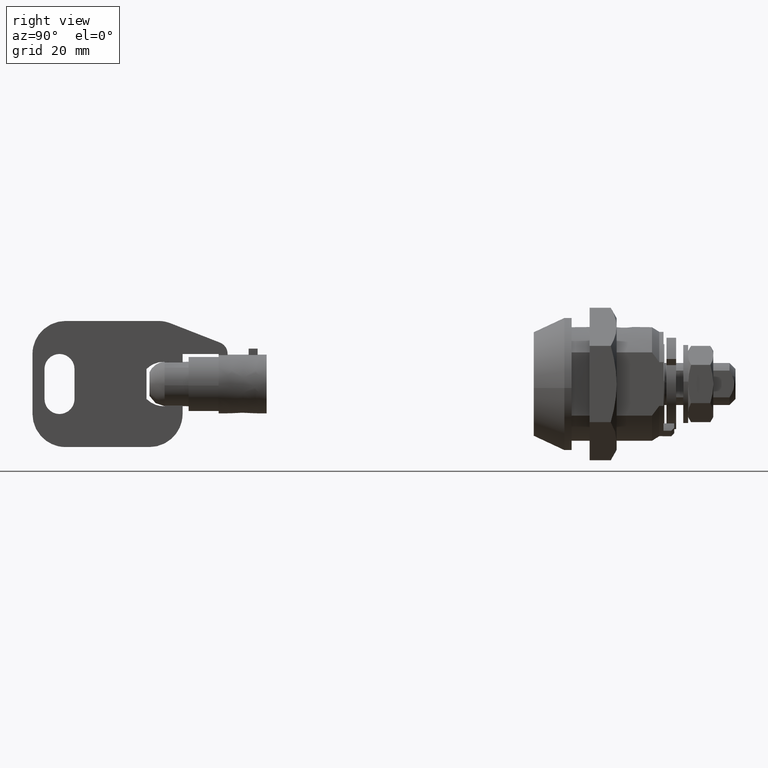
[diagram: clean part render]
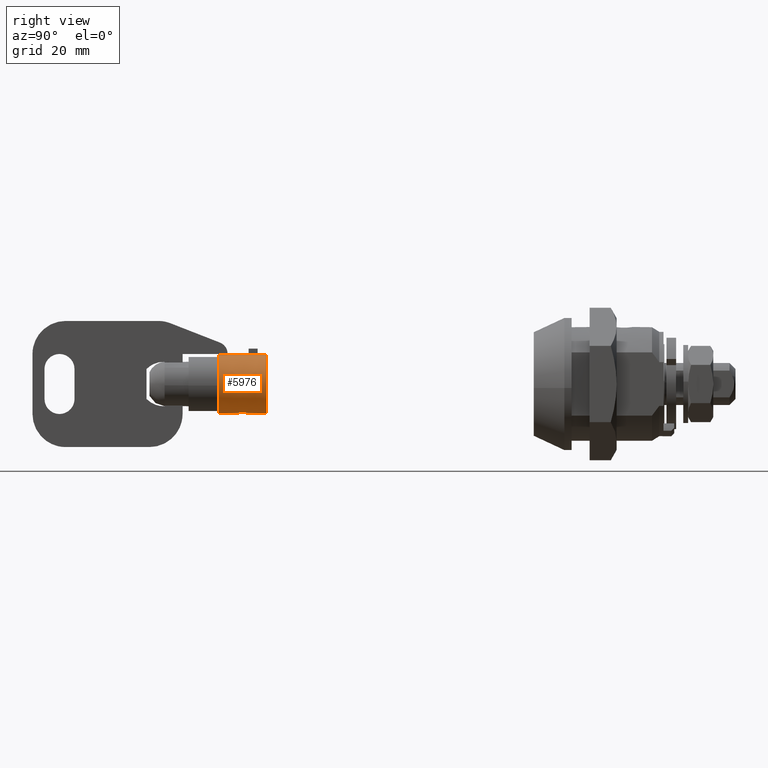
[diagram: same view with one face highlighted and labeled with its STEP entity id]
A machine part, right view. The second image highlights one B-rep face of the part: STEP entity #5976.
In plain terms, the highlighted face is a freeform B-spline surface patch.
Its self-contained STEP definition (entity closure, byte-faithful):
#5772=CARTESIAN_POINT('',(-44.290192999999945,3.141464478331277,-3.763065005296247));
#5773=CARTESIAN_POINT('',(-44.290192999999945,3.086635226226902,-3.806250179672497));
#5774=CARTESIAN_POINT('',(-44.290192999999938,1.657061809872898,-4.932225364440196));
#5775=CARTESIAN_POINT('',(-44.290192999999952,-0.092682498993678,-4.899123386319258));
#5776=CARTESIAN_POINT('',(-44.290192999999938,-4.991805885312937,-4.806440887325580));
#5777=CARTESIAN_POINT('',(-44.290192999999952,-4.899123386319258,0.092682498993678));
#5778=CARTESIAN_POINT('',(-44.290192999999938,-4.806440887325580,4.991805885312937));
#5779=CARTESIAN_POINT('',(-44.290192999999952,0.092682498993678,4.899123386319258));
#5780=CARTESIAN_POINT('',(-44.290192999999938,4.991805885312937,4.806440887325580));
#5781=CARTESIAN_POINT('',(-44.290192999999960,4.898001697958048,-0.151974056107977));
#5782=CARTESIAN_POINT('',(-44.290192999999924,4.896891199577016,-0.210674119744937));
#5783=CARTESIAN_POINT('',(-52.695193000000003,3.141464478331277,-3.763065005296247));
#5784=CARTESIAN_POINT('',(-52.695193000000010,3.086635226226902,-3.806250179672497));
#5785=CARTESIAN_POINT('',(-52.695193000000003,1.657061809872898,-4.932225364440196));
#5786=CARTESIAN_POINT('',(-52.695193000000003,-0.092682498993678,-4.899123386319258));
#5787=CARTESIAN_POINT('',(-52.695192999999996,-4.991805885312937,-4.806440887325580));
#5788=CARTESIAN_POINT('',(-52.695193000000003,-4.899123386319258,0.092682498993678));
#5789=CARTESIAN_POINT('',(-52.695192999999996,-4.806440887325580,4.991805885312937));
#5790=CARTESIAN_POINT('',(-52.695193000000003,0.092682498993678,4.899123386319258));
#5791=CARTESIAN_POINT('',(-52.695192999999996,4.991805885312937,4.806440887325580));
#5792=CARTESIAN_POINT('',(-52.695193000000025,4.898001697958048,-0.151974056107977));
#5793=CARTESIAN_POINT('',(-52.695192999999975,4.896891199577016,-0.210674119744937));
#5801=(BOUNDED_SURFACE()B_SPLINE_SURFACE(2,1,((#5772,#5783),(#5773,#5784),(#5774,#5785),(#5775,#5786),(#5776,#5787),(#5777,#5788),(#5778,#5789),(#5779,#5790),(#5780,#5791),(#5781,#5792),(#5782,#5793)),.UNSPECIFIED.,.F.,.F.,.U.)B_SPLINE_SURFACE_WITH_KNOTS((3,1,2,2,2,1,3),(2,2),(0.0,0.139686810797283,3.713152076740075,11.834664044791880,19.956176012843681,28.077687980895480,28.217392020431930),(0.0,8.405000000000072),.UNSPECIFIED.)GEOMETRIC_REPRESENTATION_ITEM()RATIONAL_B_SPLINE_SURFACE(((0.854453186215711,0.854453186215711),(0.855057703992221,0.855057703992221),(0.871126983722081,0.871126983722081),(1.0,1.0),(0.707106781186548,0.707106781186548),(1.0,1.0),(0.707106781186548,0.707106781186548),(1.0,1.0),(0.707106781186548,0.707106781186548),(1.005038269472733,1.005038269472733),(1.010076538945467,1.010076538945467)))REPRESENTATION_ITEM('')SURFACE());
#5802=CARTESIAN_POINT('',(-44.490192999999728,3.031880904368626,-3.849376336721885));
#5803=VERTEX_POINT('',#5802);
#5804=CARTESIAN_POINT('',(-44.490192999999962,0.0,-4.900000000000000));
#5805=VERTEX_POINT('',#5804);
#5806=CARTESIAN_POINT('',(-44.490192999999728,3.031880904368626,-3.849376336721885));
#5807=CARTESIAN_POINT('',(-44.490192999999955,1.697974330930911,-4.900000000000000));
#5808=CARTESIAN_POINT('',(-44.490192999999962,0.0,-4.900000000000000));
#5816=(BOUNDED_CURVE()B_SPLINE_CURVE(2,(#5806,#5807,#5808),.UNSPECIFIED.,.F.,.U.)B_SPLINE_CURVE_WITH_KNOTS((3,3),(0.392862775341363,0.500000000000000),.UNSPECIFIED.)CURVE()GEOMETRIC_REPRESENTATION_ITEM()RATIONAL_B_SPLINE_CURVE((0.856543982595250,0.874480933659967,1.0))REPRESENTATION_ITEM(''));
#5817=EDGE_CURVE('',#5803,#5805,#5816,.T.);
#5818=ORIENTED_EDGE('',*,*,#5817,.T.);
#5819=CARTESIAN_POINT('',(-44.490192999999962,0.0,4.900000000000000));
#5820=VERTEX_POINT('',#5819);
#5821=CARTESIAN_POINT('',(-44.490192999999962,0.0,-4.900000000000000));
#5822=CARTESIAN_POINT('',(-44.490192999999948,-4.899999999999999,-4.899999999999999));
#5823=CARTESIAN_POINT('',(-44.490192999999962,-4.900000000000000,0.0));
#5824=CARTESIAN_POINT('',(-44.490192999999948,-4.899999999999999,4.899999999999999));
#5825=CARTESIAN_POINT('',(-44.490192999999962,0.0,4.900000000000000));
#5833=(BOUNDED_CURVE()B_SPLINE_CURVE(2,(#5821,#5822,#5823,#5824,#5825),.UNSPECIFIED.,.F.,.U.)B_SPLINE_CURVE_WITH_KNOTS((3,2,3),(0.500000000000000,0.750000000000000,1.0),.UNSPECIFIED.)CURVE()GEOMETRIC_REPRESENTATION_ITEM()RATIONAL_B_SPLINE_CURVE((1.0,0.707106781186547,1.0,0.707106781186547,1.0))REPRESENTATION_ITEM(''));
#5834=EDGE_CURVE('',#5805,#5820,#5833,.T.);
#5835=ORIENTED_EDGE('',*,*,#5834,.T.);
#5836=CARTESIAN_POINT('',(-44.490192999999962,4.899123386318836,-0.092682499015972));
#5837=VERTEX_POINT('',#5836);
#5838=CARTESIAN_POINT('',(-44.490192999999962,0.0,4.900000000000000));
#5839=CARTESIAN_POINT('',(-44.490192999999948,4.899999999999999,4.899999999999999));
#5840=CARTESIAN_POINT('',(-44.490192999999962,4.900000000000000,0.0));
#5841=CARTESIAN_POINT('',(-44.490192999999948,4.900000000000000,-0.046345395132138));
#5842=CARTESIAN_POINT('',(-44.490192999999969,4.899123386318836,-0.092682499015972));
#5850=(BOUNDED_CURVE()B_SPLINE_CURVE(2,(#5838,#5839,#5840,#5841,#5842),.UNSPECIFIED.,.F.,.U.)B_SPLINE_CURVE_WITH_KNOTS((3,2,3),(0.0,0.250000000000000,0.253330944450832),.UNSPECIFIED.)CURVE()GEOMETRIC_REPRESENTATION_ITEM()RATIONAL_B_SPLINE_CURVE((1.0,0.707106781186547,1.0,0.996097555832428,0.992299102262812))REPRESENTATION_ITEM(''));
#5851=EDGE_CURVE('',#5820,#5837,#5850,.T.);
#5852=ORIENTED_EDGE('',*,*,#5851,.T.);
#5853=CARTESIAN_POINT('',(-52.490193000000012,4.899123160617044,-0.092694427897792));
#5854=VERTEX_POINT('',#5853);
#5855=CARTESIAN_POINT('',(-44.490192999999962,4.899123386318836,-0.092682499015972));
#5856=CARTESIAN_POINT('',(-52.490193000000012,4.899123160617044,-0.092694427897792));
#5857=QUASI_UNIFORM_CURVE('',1,(#5855,#5856),.UNSPECIFIED.,.F.,.U.);
#5858=EDGE_CURVE('',#5837,#5854,#5857,.T.);
#5859=ORIENTED_EDGE('',*,*,#5858,.T.);
#5860=CARTESIAN_POINT('',(-52.490192999999998,0.900000000000000,4.816637831516920));
#5861=VERTEX_POINT('',#5860);
#5862=CARTESIAN_POINT('',(-52.490192999999998,0.900000000000000,4.816637831516919));
#5863=CARTESIAN_POINT('',(-52.490193000000012,4.977594979998557,4.054729710049760));
#5864=CARTESIAN_POINT('',(-52.490193000000012,4.899123160617044,-0.092694427897792));
#5872=(BOUNDED_CURVE()B_SPLINE_CURVE(2,(#5862,#5863,#5864),.UNSPECIFIED.,.F.,.U.)B_SPLINE_CURVE_WITH_KNOTS((3,3),(0.0,0.236558628282082),.UNSPECIFIED.)CURVE()GEOMETRIC_REPRESENTATION_ITEM()RATIONAL_B_SPLINE_CURVE((1.0,0.753028900152545,0.973442957146939))REPRESENTATION_ITEM(''));
#5873=EDGE_CURVE('',#5861,#5854,#5872,.T.);
#5874=ORIENTED_EDGE('',*,*,#5873,.F.);
#5875=CARTESIAN_POINT('',(-50.990193000000012,0.900000000000000,4.816637831516920));
#5876=VERTEX_POINT('',#5875);
#5877=CARTESIAN_POINT('',(-50.990193000000012,0.900000000000000,4.816637831516920));
#5878=CARTESIAN_POINT('',(-52.490192999999998,0.900000000000000,4.816637831516920));
#5879=QUASI_UNIFORM_CURVE('',1,(#5877,#5878),.UNSPECIFIED.,.F.,.U.);
#5880=EDGE_CURVE('',#5876,#5861,#5879,.T.);
#5881=ORIENTED_EDGE('',*,*,#5880,.F.);
#5882=CARTESIAN_POINT('',(-50.990193000000012,-0.900000000000000,4.816637831516920));
#5883=VERTEX_POINT('',#5882);
#5884=CARTESIAN_POINT('',(-50.990193000000012,0.899999999999999,4.816637831516919));
#5885=CARTESIAN_POINT('',(-50.990193000000005,1.192622E-015,4.984804928220742));
#5886=CARTESIAN_POINT('',(-50.990193000000012,-0.899999999999998,4.816637831516919));
#5894=(BOUNDED_CURVE()B_SPLINE_CURVE(2,(#5884,#5885,#5886),.UNSPECIFIED.,.F.,.U.)CURVE()GEOMETRIC_REPRESENTATION_ITEM()QUASI_UNIFORM_CURVE()RATIONAL_B_SPLINE_CURVE((1.0,0.982987312554473,1.0))REPRESENTATION_ITEM(''));
#5895=EDGE_CURVE('',#5876,#5883,#5894,.T.);
#5896=ORIENTED_EDGE('',*,*,#5895,.T.);
#5897=CARTESIAN_POINT('',(-52.490192999999998,-0.900000000000000,4.816637831516920));
#5898=VERTEX_POINT('',#5897);
#5899=CARTESIAN_POINT('',(-50.990193000000012,-0.900000000000000,4.816637831516920));
#5900=CARTESIAN_POINT('',(-52.490192999999998,-0.900000000000000,4.816637831516920));
#5901=QUASI_UNIFORM_CURVE('',1,(#5899,#5900),.UNSPECIFIED.,.F.,.U.);
#5902=EDGE_CURVE('',#5883,#5898,#5901,.T.);
#5903=ORIENTED_EDGE('',*,*,#5902,.T.);
#5904=CARTESIAN_POINT('',(-52.490193000000012,3.031879876965549,-3.849377145932925));
#5905=VERTEX_POINT('',#5904);
#5906=CARTESIAN_POINT('',(-52.490193000000012,3.031879876965549,-3.849377145932925));
#5907=CARTESIAN_POINT('',(-52.490192999999998,1.697973598502444,-4.899999999999999));
#5908=CARTESIAN_POINT('',(-52.490192999999998,0.0,-4.900000000000000));
#5909=CARTESIAN_POINT('',(-52.490192999999998,-4.467113754212245,-4.900000000000000));
#5910=CARTESIAN_POINT('',(-52.490192999999998,-4.879114949170234,-0.451926224934504));
#5911=CARTESIAN_POINT('',(-52.490192999999998,-5.291116144128222,3.996147550130993));
#5912=CARTESIAN_POINT('',(-52.490192999999998,-0.900000000000002,4.816637831516918));
#5920=(BOUNDED_CURVE()B_SPLINE_CURVE(2,(#5906,#5907,#5908,#5909,#5910,#5911,#5912),.UNSPECIFIED.,.F.,.U.)B_SPLINE_CURVE_WITH_KNOTS((3,2,2,3),(0.386631156131349,0.500000000000000,0.750000000000000,1.0),.UNSPECIFIED.)CURVE()GEOMETRIC_REPRESENTATION_ITEM()RATIONAL_B_SPLINE_CURVE((0.870627851513649,0.881641061828917,1.0,0.738995886938273,1.0,0.738995886938273,1.0))REPRESENTATION_ITEM(''));
#5921=EDGE_CURVE('',#5905,#5898,#5920,.T.);
#5922=ORIENTED_EDGE('',*,*,#5921,.F.);
#5923=CARTESIAN_POINT('',(-44.490192999999728,3.031880904368626,-3.849376336721885));
#5924=CARTESIAN_POINT('',(-52.490193000000012,3.031879876965549,-3.849377145932925));
#5925=QUASI_UNIFORM_CURVE('',1,(#5923,#5924),.UNSPECIFIED.,.F.,.U.);
#5926=EDGE_CURVE('',#5803,#5905,#5925,.T.);
#5927=ORIENTED_EDGE('',*,*,#5926,.F.);
#5928=EDGE_LOOP('',(#5818,#5835,#5852,#5859,#5874,#5881,#5896,#5903,#5922,#5927));
#5929=FACE_OUTER_BOUND('',#5928,.T.);
#5930=CARTESIAN_POINT('',(-47.490192999999998,-0.800000000000000,4.834252786108730));
#5931=VERTEX_POINT('',#5930);
#5932=CARTESIAN_POINT('',(-45.990192999999998,-0.800000000000000,4.834252786108730));
#5933=VERTEX_POINT('',#5932);
#5934=CARTESIAN_POINT('',(-47.490192999999998,-0.800000000000000,4.834252786108730));
#5935=CARTESIAN_POINT('',(-45.990192999999998,-0.800000000000000,4.834252786108730));
#5936=QUASI_UNIFORM_CURVE('',1,(#5934,#5935),.UNSPECIFIED.,.F.,.U.);
#5937=EDGE_CURVE('',#5931,#5933,#5936,.T.);
#5938=ORIENTED_EDGE('',*,*,#5937,.F.);
#5939=CARTESIAN_POINT('',(-47.490192999999998,0.800000000000000,4.834252786108730));
#5940=VERTEX_POINT('',#5939);
#5941=CARTESIAN_POINT('',(-47.490192999999998,-0.800000000000003,4.834252786108728));
#5942=CARTESIAN_POINT('',(-47.490192999999998,-2.385245E-015,4.966641394714189));
#5943=CARTESIAN_POINT('',(-47.490192999999998,0.800000000000001,4.834252786108728));
#5951=(BOUNDED_CURVE()B_SPLINE_CURVE(2,(#5941,#5942,#5943),.UNSPECIFIED.,.F.,.U.)CURVE()GEOMETRIC_REPRESENTATION_ITEM()QUASI_UNIFORM_CURVE()RATIONAL_B_SPLINE_CURVE((1.0,0.986582201246679,1.0))REPRESENTATION_ITEM(''));
#5952=EDGE_CURVE('',#5931,#5940,#5951,.T.);
#5953=ORIENTED_EDGE('',*,*,#5952,.T.);
#5954=CARTESIAN_POINT('',(-45.990192999999998,0.800000000000000,4.834252786108730));
#5955=VERTEX_POINT('',#5954);
#5956=CARTESIAN_POINT('',(-47.490192999999998,0.800000000000000,4.834252786108730));
#5957=CARTESIAN_POINT('',(-45.990192999999998,0.800000000000000,4.834252786108730));
#5958=QUASI_UNIFORM_CURVE('',1,(#5956,#5957),.UNSPECIFIED.,.F.,.U.);
#5959=EDGE_CURVE('',#5940,#5955,#5958,.T.);
#5960=ORIENTED_EDGE('',*,*,#5959,.T.);
#5961=CARTESIAN_POINT('',(-45.990192999999998,0.800000000000000,4.834252786108728));
#5962=CARTESIAN_POINT('',(-45.990192999999998,-1.301043E-015,4.966641394714188));
#5963=CARTESIAN_POINT('',(-45.990192999999998,-0.799999999999999,4.834252786108729));
#5971=(BOUNDED_CURVE()B_SPLINE_CURVE(2,(#5961,#5962,#5963),.UNSPECIFIED.,.F.,.U.)CURVE()GEOMETRIC_REPRESENTATION_ITEM()QUASI_UNIFORM_CURVE()RATIONAL_B_SPLINE_CURVE((1.0,0.986582201246679,1.0))REPRESENTATION_ITEM(''));
#5972=EDGE_CURVE('',#5955,#5933,#5971,.T.);
#5973=ORIENTED_EDGE('',*,*,#5972,.T.);
#5974=EDGE_LOOP('',(#5938,#5953,#5960,#5973));
#5975=FACE_BOUND('',#5974,.T.);
#5976=ADVANCED_FACE('',(#5929,#5975),#5801,.T.);